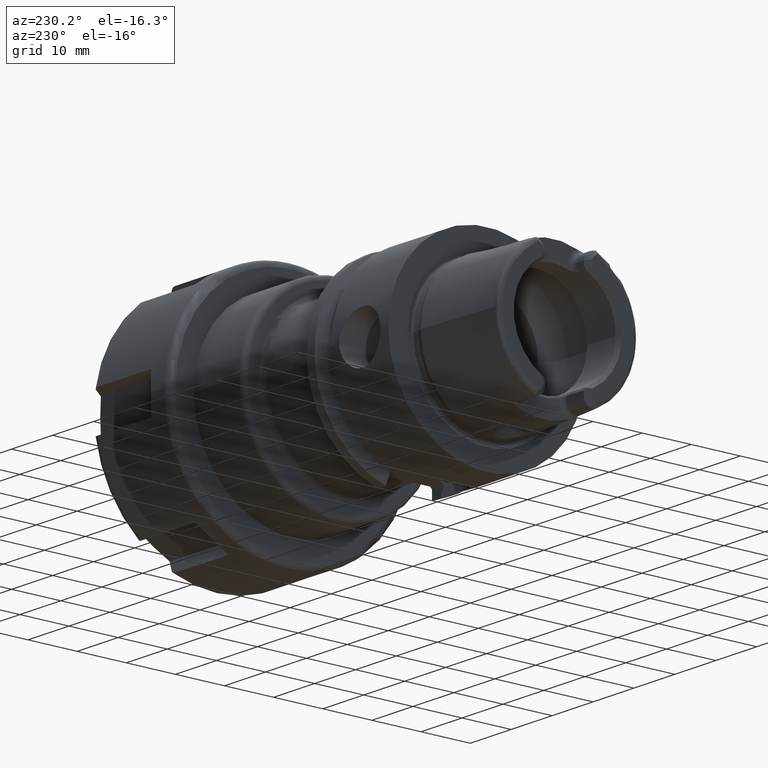
[diagram: clean part render]
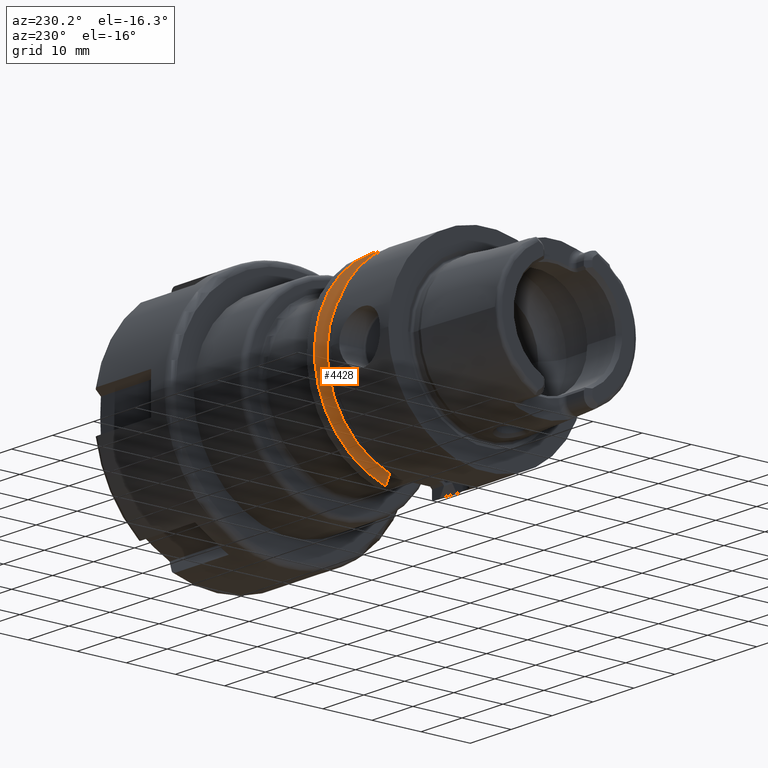
[diagram: same view with one face highlighted and labeled with its STEP entity id]
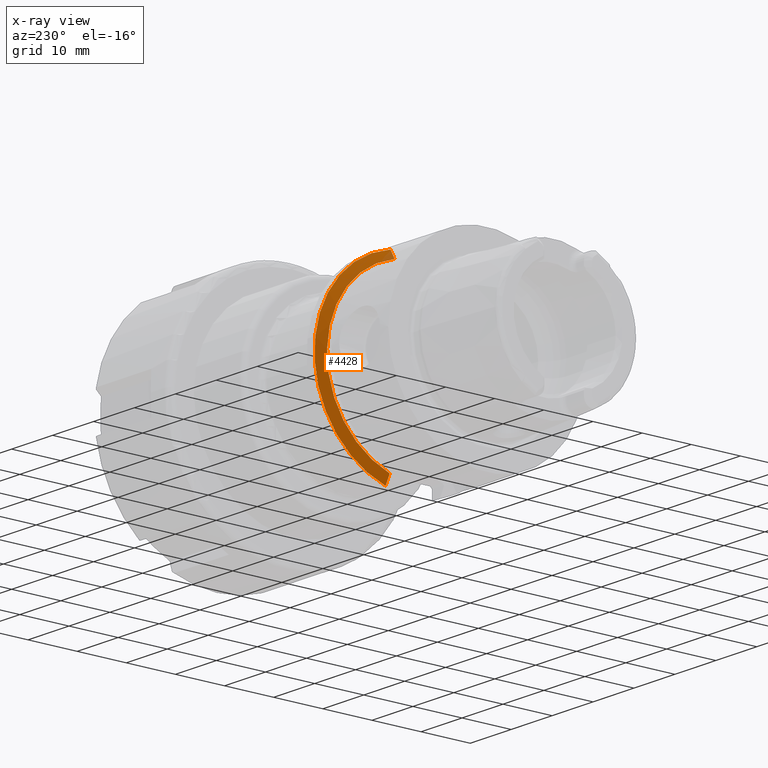
[diagram: x-ray of the same camera — body ghosted, the highlighted face saturated]
A machine part, auxiliary view. The second image highlights one B-rep face of the part: STEP entity #4428.
The next image is the same camera in x-ray: the body ghosted, the highlighted face saturated — about 2% of this face is hidden behind the body in this view.
In plain terms, the highlighted conical surface has half-angle 60 deg.
Its self-contained STEP definition (entity closure, byte-faithful):
#1021=CARTESIAN_POINT('',(1.803515969889E1,0.E0,0.E0));
#1022=DIRECTION('',(-1.E0,0.E0,0.E0));
#1023=DIRECTION('',(0.E0,2.25725E-1,9.741910615352E-1));
#1024=AXIS2_PLACEMENT_3D('',#1021,#1022,#1023);
#1132=CARTESIAN_POINT('',(1.70375E1,0.E0,0.E0));
#1133=DIRECTION('',(-1.E0,0.E0,0.E0));
#1134=DIRECTION('',(0.E0,2.470719860842E-1,9.689971278040E-1));
#1135=AXIS2_PLACEMENT_3D('',#1132,#1133,#1134);
#1852=CARTESIAN_POINT('',(1.803515969889E1,5.5175E0,-1.922387041545E1));
#1853=CARTESIAN_POINT('',(1.791992583925E1,5.5175E0,-1.901622138812E1));
#1854=CARTESIAN_POINT('',(1.769237632933E1,5.5175E0,-1.860566967499E1));
#1855=CARTESIAN_POINT('',(1.735989185391E1,5.5175E0,-1.800420325575E1));
#1856=CARTESIAN_POINT('',(1.714399459474E1,5.5175E0,-1.761253540924E1));
#1857=CARTESIAN_POINT('',(1.70375E1,5.5175E0,-1.741904925329E1));
#1974=CARTESIAN_POINT('',(1.70375E1,4.5145E0,1.770551814798E1));
#1975=CARTESIAN_POINT('',(1.714447115751E1,4.5145E0,1.789672560819E1));
#1976=CARTESIAN_POINT('',(1.736100339003E1,4.5145E0,1.828339173494E1));
#1977=CARTESIAN_POINT('',(1.769350911179E1,4.5145E0,1.887606128139E1));
#1978=CARTESIAN_POINT('',(1.792041108712E1,4.5145E0,1.927980537228E1));
#1979=CARTESIAN_POINT('',(1.803515969889E1,4.5145E0,1.948382123070E1));
#2961=CARTESIAN_POINT('',(1.70375E1,4.5145E0,1.770551814798E1));
#2963=VERTEX_POINT('',#2961);
#2964=VERTEX_POINT('',#1979);
#2971=CARTESIAN_POINT('',(1.70375E1,5.5175E0,-1.741904925329E1));
#2973=VERTEX_POINT('',#2971);
#2974=VERTEX_POINT('',#1852);
#4414=CARTESIAN_POINT('',(1.753632984945E1,0.E0,0.E0));
#4415=DIRECTION('',(1.E0,0.E0,0.E0));
#4416=DIRECTION('',(0.E0,-1.E0,0.E0));
#4417=AXIS2_PLACEMENT_3D('',#4414,#4415,#4416);
#4418=CONICAL_SURFACE('',#4417,1.913600135643E1,6.E1);
#4420=ORIENTED_EDGE('',*,*,#4419,.T.);
#4422=ORIENTED_EDGE('',*,*,#4421,.F.);
#4423=ORIENTED_EDGE('',*,*,#4375,.F.);
#4425=ORIENTED_EDGE('',*,*,#4424,.F.);
#4426=EDGE_LOOP('',(#4420,#4422,#4423,#4425));
#4427=FACE_OUTER_BOUND('',#4426,.F.);
#4428=ADVANCED_FACE('',(#4427),#4418,.T.);
#1025=CIRCLE('',#1024,2.E1);
#1136=CIRCLE('',#1135,1.827200271285E1);
#1858=B_SPLINE_CURVE_WITH_KNOTS('',3,(#1852,#1853,#1854,#1855,#1856,#1857),
.UNSPECIFIED.,.F.,.F.,(4,1,1,4),(0.E0,3.333333333333E-1,6.666666666667E-1,1.E0),
.UNSPECIFIED.);
#1980=B_SPLINE_CURVE_WITH_KNOTS('',3,(#1974,#1975,#1976,#1977,#1978,#1979),
.UNSPECIFIED.,.F.,.F.,(4,1,1,4),(0.E0,3.333333333333E-1,6.666666666667E-1,1.E0),
.UNSPECIFIED.);
#4375=EDGE_CURVE('',#2964,#2974,#1025,.T.);
#4419=EDGE_CURVE('',#2963,#2973,#1136,.T.);
#4421=EDGE_CURVE('',#2974,#2973,#1858,.T.);
#4424=EDGE_CURVE('',#2963,#2964,#1980,.T.);